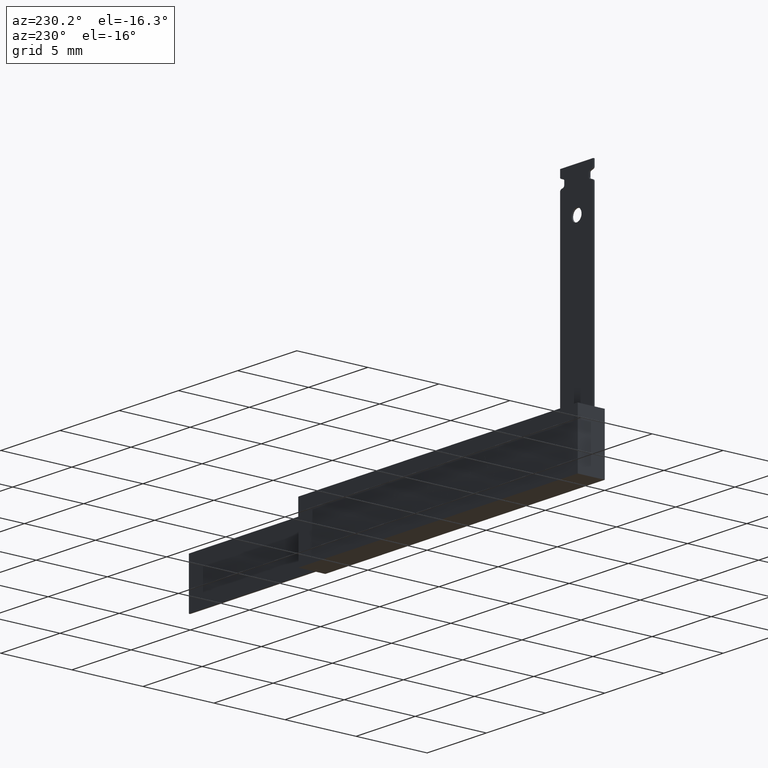
[diagram: clean part render]
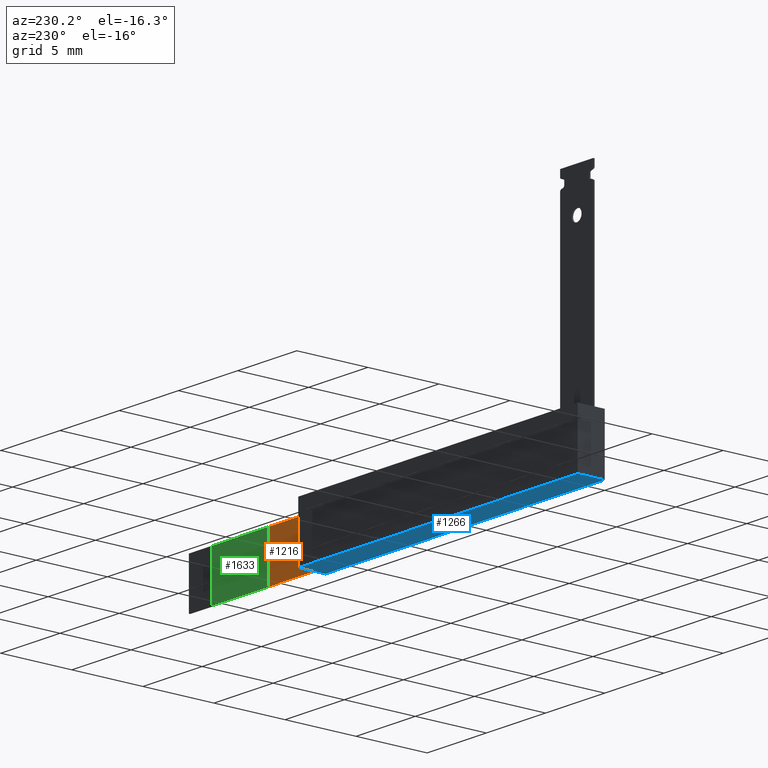
[diagram: same view with three faces highlighted in distinct colors, each labeled with its STEP entity id]
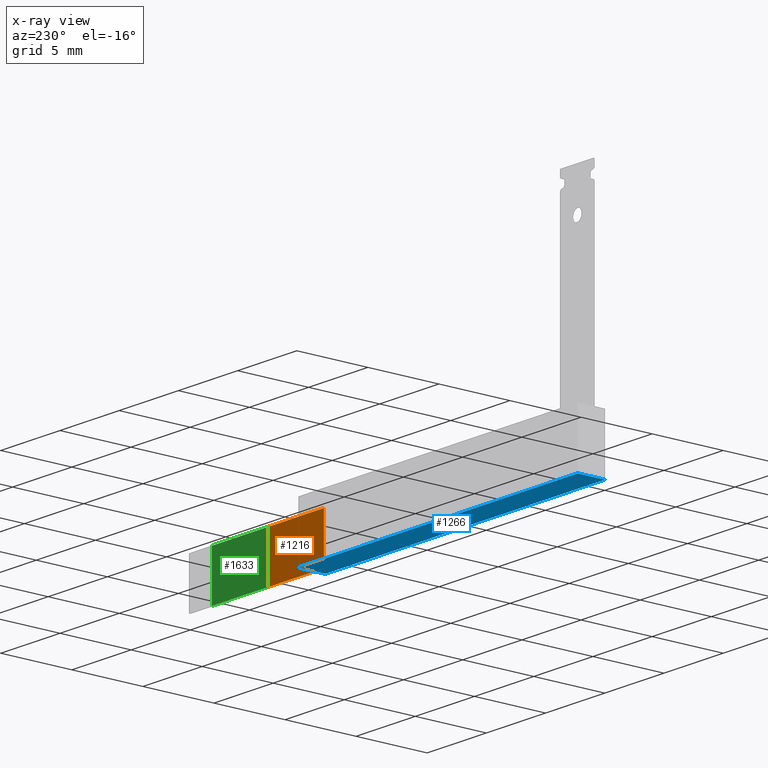
[diagram: x-ray of the same camera — body ghosted, the three highlighted faces saturated]
A machine part, auxiliary view with three faces highlighted in distinct colors.
The next image is the same camera in x-ray (body ghosted, the three faces saturated) — at least one of them is partly hidden behind the body in this view.
Their STEP definitions:

[orange] entity #1216 — the highlighted planar face has unit normal (0, -1, 0).
#22 = CARTESIAN_POINT ( 'NONE',  ( 23.60000000000000900, 0.1010000000000000100, -3.696989483164532700 ) ) ;
#46 = LINE ( 'NONE', #22, #948 ) ;
#88 = VERTEX_POINT ( 'NONE', #2903 ) ;
#128 = LINE ( 'NONE', #525, #829 ) ;
#165 = DIRECTION ( 'NONE',  ( 0.0000000000000000000, -1.000000000000000000, 0.0000000000000000000 ) ) ;
#185 = CARTESIAN_POINT ( 'NONE',  ( 0.0000000000000000000, 0.1010000000000000100, 0.0000000000000000000 ) ) ;
#197 = CARTESIAN_POINT ( 'NONE',  ( 28.26450039103012900, 0.1010000000000000100, -0.3101830336703397300 ) ) ;
#202 = VECTOR ( 'NONE', #941, 1000.000000000000000 ) ;
#225 = DIRECTION ( 'NONE',  ( 1.000000000000000000, 0.0000000000000000000, 0.0000000000000000000 ) ) ;
#249 = FACE_OUTER_BOUND ( 'NONE', #676, .T. ) ;
#311 = CARTESIAN_POINT ( 'NONE',  ( 23.60000000000000900, 0.1010000000000000100, -0.3101830336703397300 ) ) ;
#461 = ORIENTED_EDGE ( 'NONE', *, *, #2122, .F. ) ;
#471 = EDGE_CURVE ( 'NONE', #88, #1534, #46, .T. ) ;
#490 = EDGE_CURVE ( 'NONE', #1534, #2744, #907, .T. ) ;
#525 = CARTESIAN_POINT ( 'NONE',  ( 23.60000000000000900, 0.1010000000000000100, -0.3101830336703397300 ) ) ;
#676 = EDGE_LOOP ( 'NONE', ( #847, #2069, #461, #2057 ) ) ;
#680 = CARTESIAN_POINT ( 'NONE',  ( 28.26450039103012900, 0.1010000000000000100, -3.696989483164532700 ) ) ;
#728 = CARTESIAN_POINT ( 'NONE',  ( 28.26450039103012900, 0.1010000000000000100, -3.696989483164532700 ) ) ;
#829 = VECTOR ( 'NONE', #979, 1000.000000000000000 ) ;
#833 = AXIS2_PLACEMENT_3D ( 'NONE', #185, #165, #2207 ) ;
#847 = ORIENTED_EDGE ( 'NONE', *, *, #490, .F. ) ;
#907 = LINE ( 'NONE', #728, #2782 ) ;
#941 = DIRECTION ( 'NONE',  ( 0.0000000000000000000, 0.0000000000000000000, -1.000000000000000000 ) ) ;
#948 = VECTOR ( 'NONE', #225, 1000.000000000000000 ) ;
#979 = DIRECTION ( 'NONE',  ( -1.000000000000000000, -0.0000000000000000000, -0.0000000000000000000 ) ) ;
#1216 = ADVANCED_FACE ( 'NONE', ( #249 ), #2976, .F. ) ;
#1217 = LINE ( 'NONE', #1440, #202 ) ;
#1440 = CARTESIAN_POINT ( 'NONE',  ( 23.60000000000000900, 0.1010000000000000100, -0.3101830336703397300 ) ) ;
#1481 = VERTEX_POINT ( 'NONE', #311 ) ;
#1534 = VERTEX_POINT ( 'NONE', #680 ) ;
#2057 = ORIENTED_EDGE ( 'NONE', *, *, #2339, .F. ) ;
#2069 = ORIENTED_EDGE ( 'NONE', *, *, #471, .F. ) ;
#2112 = DIRECTION ( 'NONE',  ( 0.0000000000000000000, 0.0000000000000000000, 1.000000000000000000 ) ) ;
#2122 = EDGE_CURVE ( 'NONE', #1481, #88, #1217, .T. ) ;
#2207 = DIRECTION ( 'NONE',  ( 0.0000000000000000000, -0.0000000000000000000, -1.000000000000000000 ) ) ;
#2339 = EDGE_CURVE ( 'NONE', #2744, #1481, #128, .T. ) ;
#2744 = VERTEX_POINT ( 'NONE', #197 ) ;
#2782 = VECTOR ( 'NONE', #2112, 1000.000000000000000 ) ;
#2903 = CARTESIAN_POINT ( 'NONE',  ( 23.60000000000000900, 0.1010000000000000100, -3.696989483164532700 ) ) ;
#2976 = PLANE ( 'NONE',  #833 ) ;

[blue] entity #1266 — the highlighted planar face has unit normal (0, 0, 1).
#11 = ORIENTED_EDGE ( 'NONE', *, *, #265, .T. ) ;
#44 = CARTESIAN_POINT ( 'NONE',  ( 0.0000000000000000000, 1.899999999999999900, -4.000000000000000000 ) ) ;
#265 = EDGE_CURVE ( 'NONE', #1126, #511, #1482, .T. ) ;
#271 = DIRECTION ( 'NONE',  ( 1.000000000000000000, 0.0000000000000000000, -0.0000000000000000000 ) ) ;
#511 = VERTEX_POINT ( 'NONE', #683 ) ;
#568 = VECTOR ( 'NONE', #1349, 1000.000000000000000 ) ;
#664 = DIRECTION ( 'NONE',  ( -1.000000000000000000, -0.0000000000000000000, -0.0000000000000000000 ) ) ;
#683 = CARTESIAN_POINT ( 'NONE',  ( 23.60000000000000100, 0.0000000000000000000, -4.000000000000000000 ) ) ;
#697 = VERTEX_POINT ( 'NONE', #2094 ) ;
#864 = LINE ( 'NONE', #966, #2709 ) ;
#966 = CARTESIAN_POINT ( 'NONE',  ( 0.0000000000000000000, 0.0000000000000000000, -4.000000000000000000 ) ) ;
#1074 = ORIENTED_EDGE ( 'NONE', *, *, #2103, .T. ) ;
#1126 = VERTEX_POINT ( 'NONE', #1589 ) ;
#1179 = VECTOR ( 'NONE', #664, 1000.000000000000000 ) ;
#1266 = ADVANCED_FACE ( 'NONE', ( #2809 ), #2490, .F. ) ;
#1349 = DIRECTION ( 'NONE',  ( -0.0000000000000000000, -1.000000000000000000, -0.0000000000000000000 ) ) ;
#1403 = DIRECTION ( 'NONE',  ( -1.000000000000000000, -0.0000000000000000000, -0.0000000000000000000 ) ) ;
#1482 = LINE ( 'NONE', #1539, #568 ) ;
#1539 = CARTESIAN_POINT ( 'NONE',  ( 23.60000000000000100, 1.899999999999999900, -4.000000000000000000 ) ) ;
#1587 = ORIENTED_EDGE ( 'NONE', *, *, #2079, .F. ) ;
#1589 = CARTESIAN_POINT ( 'NONE',  ( 23.60000000000000100, 1.899999999999999900, -4.000000000000000000 ) ) ;
#1687 = DIRECTION ( 'NONE',  ( -0.0000000000000000000, -1.000000000000000000, -0.0000000000000000000 ) ) ;
#2017 = CARTESIAN_POINT ( 'NONE',  ( 0.0000000000000000000, 0.0000000000000000000, -4.000000000000000000 ) ) ;
#2053 = AXIS2_PLACEMENT_3D ( 'NONE', #2850, #2398, #271 ) ;
#2079 = EDGE_CURVE ( 'NONE', #697, #2465, #2743, .T. ) ;
#2094 = CARTESIAN_POINT ( 'NONE',  ( 0.0000000000000000000, 1.899999999999999900, -4.000000000000000000 ) ) ;
#2103 = EDGE_CURVE ( 'NONE', #511, #2465, #864, .T. ) ;
#2228 = LINE ( 'NONE', #2324, #1179 ) ;
#2324 = CARTESIAN_POINT ( 'NONE',  ( 0.0000000000000000000, 1.899999999999999900, -4.000000000000000000 ) ) ;
#2398 = DIRECTION ( 'NONE',  ( 0.0000000000000000000, 0.0000000000000000000, 1.000000000000000000 ) ) ;
#2465 = VERTEX_POINT ( 'NONE', #2017 ) ;
#2490 = PLANE ( 'NONE',  #2053 ) ;
#2598 = VECTOR ( 'NONE', #1687, 1000.000000000000000 ) ;
#2709 = VECTOR ( 'NONE', #1403, 1000.000000000000000 ) ;
#2712 = EDGE_CURVE ( 'NONE', #1126, #697, #2228, .T. ) ;
#2743 = LINE ( 'NONE', #44, #2598 ) ;
#2809 = FACE_OUTER_BOUND ( 'NONE', #2925, .T. ) ;
#2850 = CARTESIAN_POINT ( 'NONE',  ( 0.0000000000000000000, 1.899999999999999900, -4.000000000000000000 ) ) ;
#2884 = ORIENTED_EDGE ( 'NONE', *, *, #2712, .F. ) ;
#2925 = EDGE_LOOP ( 'NONE', ( #1074, #1587, #2884, #11 ) ) ;

[green] entity #1633 — the highlighted planar face has unit normal (0, 1, 0).
#62 = EDGE_CURVE ( 'NONE', #189, #1206, #644, .T. ) ;
#115 = VERTEX_POINT ( 'NONE', #1549 ) ;
#164 = DIRECTION ( 'NONE',  ( -1.000000000000000000, -0.0000000000000000000, -0.0000000000000000000 ) ) ;
#189 = VERTEX_POINT ( 'NONE', #1066 ) ;
#217 = ORIENTED_EDGE ( 'NONE', *, *, #62, .T. ) ;
#280 = DIRECTION ( 'NONE',  ( 0.0000000000000000000, -0.0000000000000000000, 1.000000000000000000 ) ) ;
#372 = EDGE_CURVE ( 'NONE', #115, #580, #1733, .T. ) ;
#384 = LINE ( 'NONE', #1826, #2036 ) ;
#475 = CARTESIAN_POINT ( 'NONE',  ( 28.26450039103012900, 0.1019999999999999900, -0.3101830336703397300 ) ) ;
#580 = VERTEX_POINT ( 'NONE', #475 ) ;
#583 = CARTESIAN_POINT ( 'NONE',  ( 33.06149497751897600, 0.1019999999999999900, -3.696989483164532700 ) ) ;
#644 = LINE ( 'NONE', #583, #2629 ) ;
#657 = CARTESIAN_POINT ( 'NONE',  ( 28.26450039103012900, 0.1019999999999999900, -3.696989483164532700 ) ) ;
#658 = CARTESIAN_POINT ( 'NONE',  ( 33.06149497751897600, 0.1019999999999999900, -3.696989483164532700 ) ) ;
#666 = ORIENTED_EDGE ( 'NONE', *, *, #2537, .T. ) ;
#773 = DIRECTION ( 'NONE',  ( 0.0000000000000000000, 1.000000000000000000, 0.0000000000000000000 ) ) ;
#1018 = EDGE_LOOP ( 'NONE', ( #2489, #1067, #217, #666 ) ) ;
#1066 = CARTESIAN_POINT ( 'NONE',  ( 33.06149497751897600, 0.1019999999999999900, -0.3101830336703397300 ) ) ;
#1067 = ORIENTED_EDGE ( 'NONE', *, *, #2887, .T. ) ;
#1081 = DIRECTION ( 'NONE',  ( 1.000000000000000000, 0.0000000000000000000, 0.0000000000000000000 ) ) ;
#1206 = VERTEX_POINT ( 'NONE', #658 ) ;
#1229 = VECTOR ( 'NONE', #2548, 1000.000000000000000 ) ;
#1483 = VECTOR ( 'NONE', #164, 1000.000000000000000 ) ;
#1549 = CARTESIAN_POINT ( 'NONE',  ( 28.26450039103012900, 0.1019999999999999900, -3.696989483164532700 ) ) ;
#1633 = ADVANCED_FACE ( 'NONE', ( #2711 ), #2193, .T. ) ;
#1733 = LINE ( 'NONE', #657, #1229 ) ;
#1826 = CARTESIAN_POINT ( 'NONE',  ( 28.26450039103012900, 0.1019999999999999900, -0.3101830336703397300 ) ) ;
#2036 = VECTOR ( 'NONE', #1081, 1000.000000000000000 ) ;
#2156 = LINE ( 'NONE', #2952, #1483 ) ;
#2193 = PLANE ( 'NONE',  #2807 ) ;
#2405 = CARTESIAN_POINT ( 'NONE',  ( 0.0000000000000000000, 0.1019999999999999900, 0.0000000000000000000 ) ) ;
#2489 = ORIENTED_EDGE ( 'NONE', *, *, #372, .T. ) ;
#2537 = EDGE_CURVE ( 'NONE', #1206, #115, #2156, .T. ) ;
#2548 = DIRECTION ( 'NONE',  ( 0.0000000000000000000, 0.0000000000000000000, 1.000000000000000000 ) ) ;
#2629 = VECTOR ( 'NONE', #2698, 1000.000000000000000 ) ;
#2698 = DIRECTION ( 'NONE',  ( -0.0000000000000000000, -0.0000000000000000000, -1.000000000000000000 ) ) ;
#2711 = FACE_OUTER_BOUND ( 'NONE', #1018, .T. ) ;
#2807 = AXIS2_PLACEMENT_3D ( 'NONE', #2405, #773, #280 ) ;
#2887 = EDGE_CURVE ( 'NONE', #580, #189, #384, .T. ) ;
#2952 = CARTESIAN_POINT ( 'NONE',  ( 28.26450039103012900, 0.1019999999999999900, -3.696989483164532700 ) ) ;